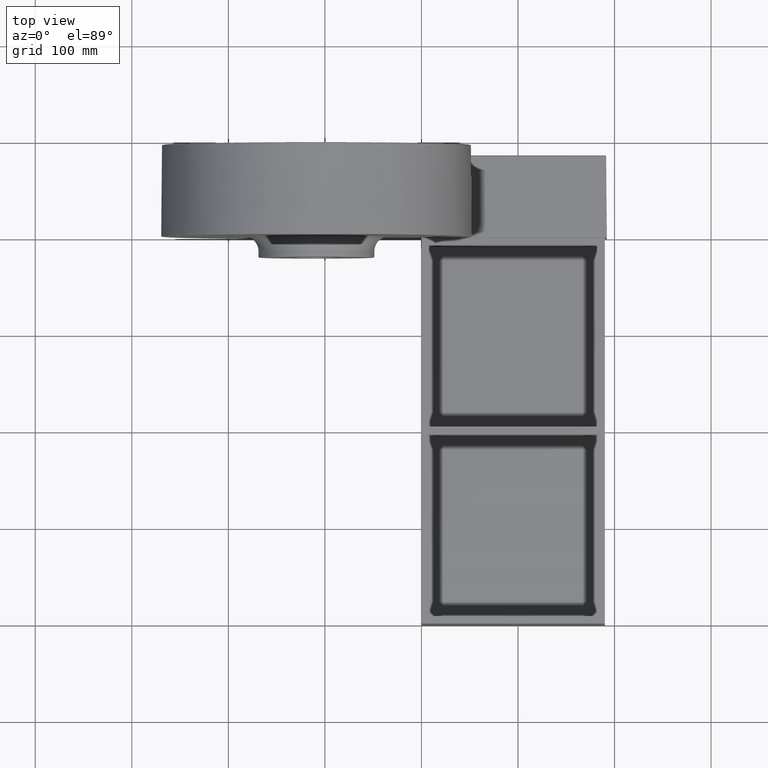
[diagram: clean part render]
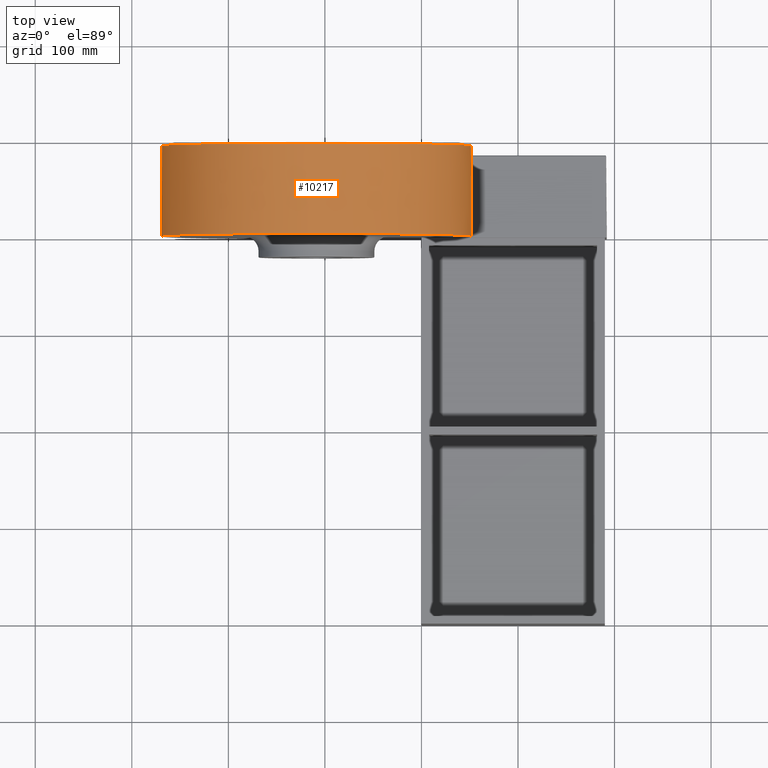
[diagram: same view with one face highlighted and labeled with its STEP entity id]
A machine part, top view. The second image highlights one B-rep face of the part: STEP entity #10217.
In plain terms, the highlighted conical surface has half-angle 0.5 deg.
Its self-contained STEP definition (entity closure, byte-faithful):
#343 = VERTEX_POINT ( 'NONE', #8015 ) ;
#718 = ORIENTED_EDGE ( 'NONE', *, *, #3154, .F. ) ;
#754 = DIRECTION ( 'NONE',  ( -0.008726535498366154442, -0.9999619230641713097, 1.068692376572001036E-18 ) ) ;
#798 = LINE ( 'NONE', #3021, #930 ) ;
#930 = VECTOR ( 'NONE', #754, 1000.000000000000227 ) ;
#1475 = EDGE_LOOP ( 'NONE', ( #7542, #7462, #10916, #718 ) ) ;
#2406 = CONICAL_SURFACE ( 'NONE', #8737, 159.9999999999999432, 0.008726646259963988933 ) ;
#2755 = CIRCLE ( 'NONE', #4138, 160.8160002160959721 ) ;
#3021 = CARTESIAN_POINT ( 'NONE',  ( -268.7417837622144248, 494.0086265354983084, 56.00000000000001421 ) ) ;
#3154 = EDGE_CURVE ( 'NONE', #343, #9451, #7794, .T. ) ;
#3461 = CARTESIAN_POINT ( 'NONE',  ( -108.7417837622144674, 400.5042632677491952, 55.99999999999999289 ) ) ;
#3490 = AXIS2_PLACEMENT_3D ( 'NONE', #7662, #6752, #8308 ) ;
#3908 = CARTESIAN_POINT ( 'NONE',  ( 52.07421645388150466, 400.5042632677491952, 56.00000000000001421 ) ) ;
#4138 = AXIS2_PLACEMENT_3D ( 'NONE', #3461, #5560, #5864 ) ;
#5000 = EDGE_CURVE ( 'NONE', #11059, #343, #8360, .T. ) ;
#5560 = DIRECTION ( 'NONE',  ( -1.214623636765614367E-16, 1.000000000000000000, -0.0000000000000000000 ) ) ;
#5864 = DIRECTION ( 'NONE',  ( -1.000000000000000000, 0.0000000000000000000, 0.0000000000000000000 ) ) ;
#6752 = DIRECTION ( 'NONE',  ( -1.214623636765614367E-16, 1.000000000000000000, -0.0000000000000000000 ) ) ;
#6791 = VECTOR ( 'NONE', #7562, 1000.000000000000227 ) ;
#7462 = ORIENTED_EDGE ( 'NONE', *, *, #7893, .T. ) ;
#7542 = ORIENTED_EDGE ( 'NONE', *, *, #5000, .F. ) ;
#7562 = DIRECTION ( 'NONE',  ( 0.008726535498366397303, -0.9999619230641713097, 0.0000000000000000000 ) ) ;
#7575 = CARTESIAN_POINT ( 'NONE',  ( 51.25821623778548286, 494.0086265354983084, 55.99999999999999289 ) ) ;
#7662 = CARTESIAN_POINT ( 'NONE',  ( -108.7417837622144674, 494.0086265354983084, 55.99999999999999289 ) ) ;
#7794 = LINE ( 'NONE', #7575, #6791 ) ;
#7893 = EDGE_CURVE ( 'NONE', #11059, #8417, #798, .T. ) ;
#8015 = CARTESIAN_POINT ( 'NONE',  ( 51.25821623778548286, 494.0086265354983084, 55.99999999999999289 ) ) ;
#8308 = DIRECTION ( 'NONE',  ( -1.000000000000000000, 0.0000000000000000000, 0.0000000000000000000 ) ) ;
#8360 = CIRCLE ( 'NONE', #3490, 159.9999999999999432 ) ;
#8417 = VERTEX_POINT ( 'NONE', #10202 ) ;
#8535 = DIRECTION ( 'NONE',  ( 1.000000000000000000, 0.0000000000000000000, 0.0000000000000000000 ) ) ;
#8550 = DIRECTION ( 'NONE',  ( 1.214623636765614367E-16, -1.000000000000000000, 0.0000000000000000000 ) ) ;
#8569 = CARTESIAN_POINT ( 'NONE',  ( -108.7417837622144674, 494.0086265354983084, 55.99999999999999289 ) ) ;
#8595 = FACE_OUTER_BOUND ( 'NONE', #1475, .T. ) ;
#8676 = EDGE_CURVE ( 'NONE', #8417, #9451, #2755, .T. ) ;
#8737 = AXIS2_PLACEMENT_3D ( 'NONE', #8569, #8550, #8535 ) ;
#9225 = CARTESIAN_POINT ( 'NONE',  ( -268.7417837622144248, 494.0086265354983084, 56.00000000000001421 ) ) ;
#9451 = VERTEX_POINT ( 'NONE', #3908 ) ;
#10202 = CARTESIAN_POINT ( 'NONE',  ( -269.5577839783104537, 400.5042632677491383, 55.99999999999999289 ) ) ;
#10217 = ADVANCED_FACE ( 'NONE', ( #8595 ), #2406, .T. ) ;
#10916 = ORIENTED_EDGE ( 'NONE', *, *, #8676, .T. ) ;
#11059 = VERTEX_POINT ( 'NONE', #9225 ) ;